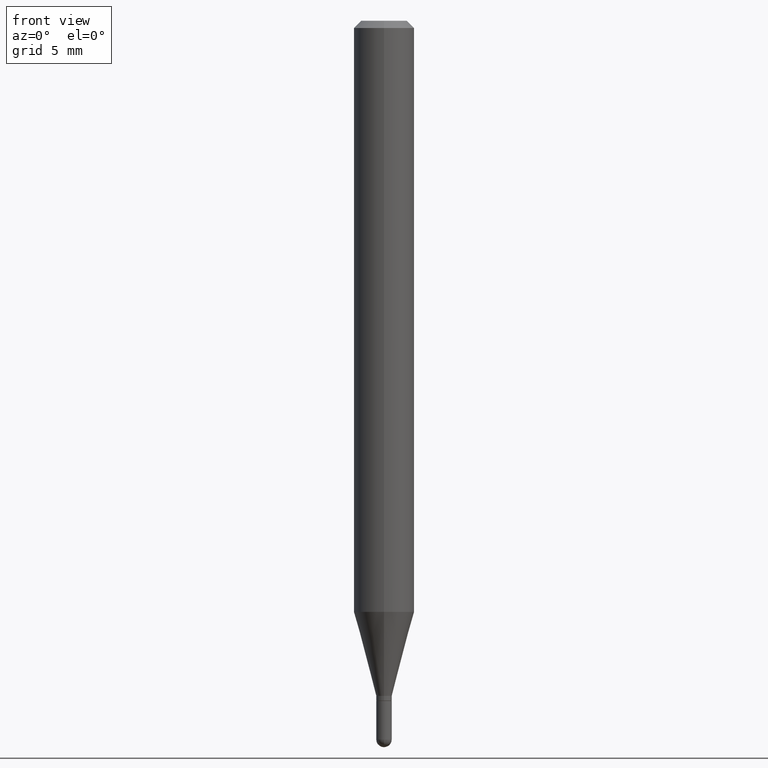
[diagram: clean part render]
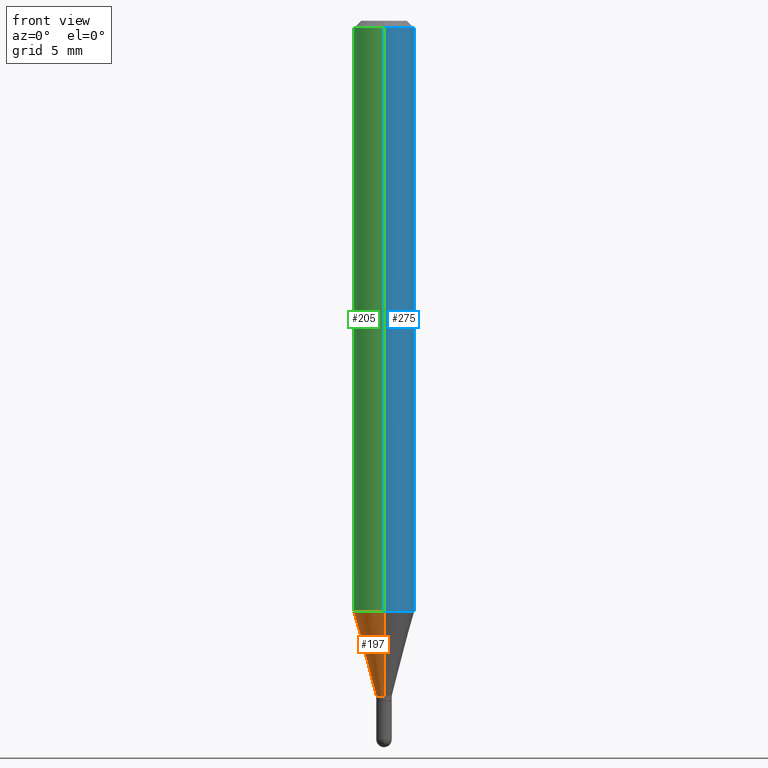
[diagram: same view with three faces highlighted in distinct colors, each labeled with its STEP entity id]
A machine part, front view with three faces highlighted in distinct colors.
Their STEP definitions:

[orange] entity #197 — the highlighted conical surface has half-angle 15 deg.
#9 = DIRECTION ( 'NONE',  ( -2.445462374393167961E-29, 3.491490549535319671E-15, 1.000000000000000000 ) ) ;
#16 = CARTESIAN_POINT ( 'NONE',  ( 2.984588122844728288E-29, -4.261223290239161768E-15, -1.220459637448047863 ) ) ;
#26 = ORIENTED_EDGE ( 'NONE', *, *, #161, .T. ) ;
#27 = DIRECTION ( 'NONE',  ( -6.982962677686265922E-15, -1.000000000000000000, 0.000000000000000000 ) ) ;
#33 = EDGE_CURVE ( 'NONE', #340, #119, #260, .T. ) ;
#43 = CARTESIAN_POINT ( 'NONE',  ( -4.364351673553618406E-16, -0.06250000000000426048, -1.220459637448047641 ) ) ;
#52 = DIRECTION ( 'NONE',  ( -6.982962677686265922E-15, -1.000000000000000000, 0.000000000000000000 ) ) ;
#83 = DIRECTION ( 'NONE',  ( -2.445462374393167961E-29, 3.491490549535319671E-15, 1.000000000000000000 ) ) ;
#99 = CARTESIAN_POINT ( 'NONE',  ( -1.117274028429456354E-16, -0.01600000000000479164, -1.394000000000000128 ) ) ;
#116 = CARTESIAN_POINT ( 'NONE',  ( -1.117274028429456354E-16, -0.01600000000000479164, -1.394000000000000128 ) ) ;
#119 = VERTEX_POINT ( 'NONE', #357 ) ;
#123 = AXIS2_PLACEMENT_3D ( 'NONE', #293, #9, #52 ) ;
#144 = EDGE_CURVE ( 'NONE', #340, #363, #278, .T. ) ;
#151 = ORIENTED_EDGE ( 'NONE', *, *, #33, .F. ) ;
#161 = EDGE_CURVE ( 'NONE', #363, #311, #465, .T. ) ;
#197 = ADVANCED_FACE ( 'NONE', ( #407 ), #350, .T. ) ;
#234 = DIRECTION ( 'NONE',  ( -1.807323732225330928E-15, -0.2588190451025182970, 0.9659258262890689783 ) ) ;
#239 = AXIS2_PLACEMENT_3D ( 'NONE', #16, #83, #270 ) ;
#260 = LINE ( 'NONE', #451, #413 ) ;
#270 = DIRECTION ( 'NONE',  ( -6.982962677686265922E-15, -1.000000000000000000, 4.370956789862821150E-15 ) ) ;
#278 = CIRCLE ( 'NONE', #490, 0.01599999999999992401 ) ;
#293 = CARTESIAN_POINT ( 'NONE',  ( 3.408974549904076448E-29, -4.867137826052236355E-15, -1.394000000000000128 ) ) ;
#298 = EDGE_CURVE ( 'NONE', #119, #311, #403, .T. ) ;
#309 = DIRECTION ( 'NONE',  ( -2.445462374393167961E-29, 3.491490549535319671E-15, 1.000000000000000000 ) ) ;
#311 = VERTEX_POINT ( 'NONE', #43 ) ;
#316 = VECTOR ( 'NONE', #234, 39.37007874015748143 ) ;
#340 = VERTEX_POINT ( 'NONE', #438 ) ;
#350 = CONICAL_SURFACE ( 'NONE', #123, 0.01599999999999992401, 0.2617993877991502960 ) ;
#357 = CARTESIAN_POINT ( 'NONE',  ( 4.440892098500920998E-16, 0.06249999999999571176, -1.220459637448048085 ) ) ;
#361 = ORIENTED_EDGE ( 'NONE', *, *, #144, .T. ) ;
#363 = VERTEX_POINT ( 'NONE', #99 ) ;
#388 = CARTESIAN_POINT ( 'NONE',  ( 3.408974549904076448E-29, -4.867137826052236355E-15, -1.394000000000000128 ) ) ;
#403 = CIRCLE ( 'NONE', #239, 0.06250000000000000000 ) ;
#407 = FACE_OUTER_BOUND ( 'NONE', #509, .T. ) ;
#413 = VECTOR ( 'NONE', #488, 39.37007874015748143 ) ;
#432 = ORIENTED_EDGE ( 'NONE', *, *, #298, .F. ) ;
#438 = CARTESIAN_POINT ( 'NONE',  ( 2.788880237858710265E-16, 0.01599999999999505637, -1.394000000000000128 ) ) ;
#451 = CARTESIAN_POINT ( 'NONE',  ( 1.136868377216495587E-16, 0.01599999999999505637, -1.394000000000000128 ) ) ;
#465 = LINE ( 'NONE', #116, #316 ) ;
#488 = DIRECTION ( 'NONE',  ( 1.839019923739601104E-15, 0.2588190451025250693, 0.9659258262890670910 ) ) ;
#490 = AXIS2_PLACEMENT_3D ( 'NONE', #388, #309, #27 ) ;
#509 = EDGE_LOOP ( 'NONE', ( #151, #361, #26, #432 ) ) ;

[blue] entity #275 — the highlighted cylindrical surface (edge-blend (fillet) strip) has radius 1.5875 mm, axis along (-0, 0, 1).
#31 = CARTESIAN_POINT ( 'NONE',  ( 0.000000000000000000, 0.000000000000000000, 0.000000000000000000 ) ) ;
#39 = ORIENTED_EDGE ( 'NONE', *, *, #236, .F. ) ;
#41 = DIRECTION ( 'NONE',  ( -6.982962677686265922E-15, -1.000000000000000000, 3.483106191921935554E-15 ) ) ;
#43 = CARTESIAN_POINT ( 'NONE',  ( -4.364351673553618406E-16, -0.06250000000000426048, -1.220459637448047641 ) ) ;
#44 = DIRECTION ( 'NONE',  ( -2.445462374393167961E-29, 3.491490549535319671E-15, 1.000000000000000000 ) ) ;
#51 = EDGE_CURVE ( 'NONE', #119, #328, #102, .T. ) ;
#58 = CIRCLE ( 'NONE', #188, 0.06250000000000000000 ) ;
#76 = VECTOR ( 'NONE', #204, 39.37007874015748143 ) ;
#82 = DIRECTION ( 'NONE',  ( -6.982962677686265922E-15, -1.000000000000000000, 3.491490549535319671E-15 ) ) ;
#88 = DIRECTION ( 'NONE',  ( -2.445462374393167961E-29, 3.491490549535319671E-15, 1.000000000000000000 ) ) ;
#102 = LINE ( 'NONE', #412, #277 ) ;
#119 = VERTEX_POINT ( 'NONE', #357 ) ;
#124 = CIRCLE ( 'NONE', #306, 0.06250000000000000000 ) ;
#142 = CARTESIAN_POINT ( 'NONE',  ( -4.364351673553912750E-16, -0.06250000000000005551, -0.01499999999999979128 ) ) ;
#160 = ORIENTED_EDGE ( 'NONE', *, *, #353, .F. ) ;
#186 = EDGE_CURVE ( 'NONE', #311, #119, #124, .T. ) ;
#188 = AXIS2_PLACEMENT_3D ( 'NONE', #507, #88, #41 ) ;
#199 = ORIENTED_EDGE ( 'NONE', *, *, #51, .T. ) ;
#202 = CARTESIAN_POINT ( 'NONE',  ( 2.984588122844728288E-29, -4.261223290239161768E-15, -1.220459637448047863 ) ) ;
#204 = DIRECTION ( 'NONE',  ( -2.445462374393167961E-29, 3.491490549535319671E-15, 1.000000000000000000 ) ) ;
#231 = DIRECTION ( 'NONE',  ( -2.445462374393167961E-29, 3.491490549535319671E-15, 1.000000000000000000 ) ) ;
#235 = ORIENTED_EDGE ( 'NONE', *, *, #186, .T. ) ;
#236 = EDGE_CURVE ( 'NONE', #479, #328, #58, .T. ) ;
#275 = ADVANCED_FACE ( 'NONE', ( #339 ), #310, .T. ) ;
#277 = VECTOR ( 'NONE', #375, 39.37007874015748143 ) ;
#279 = CARTESIAN_POINT ( 'NONE',  ( -4.364351673553916201E-16, -0.06250000000000000000, 2.182181593459574794E-16 ) ) ;
#306 = AXIS2_PLACEMENT_3D ( 'NONE', #202, #44, #329 ) ;
#310 = CYLINDRICAL_SURFACE ( 'NONE', #461, 0.06250000000000000000 ) ;
#311 = VERTEX_POINT ( 'NONE', #43 ) ;
#322 = EDGE_LOOP ( 'NONE', ( #235, #199, #39, #160 ) ) ;
#328 = VERTEX_POINT ( 'NONE', #480 ) ;
#329 = DIRECTION ( 'NONE',  ( -6.982962677686265922E-15, -1.000000000000000000, 4.370956789862821150E-15 ) ) ;
#339 = FACE_OUTER_BOUND ( 'NONE', #322, .T. ) ;
#353 = EDGE_CURVE ( 'NONE', #311, #479, #405, .T. ) ;
#357 = CARTESIAN_POINT ( 'NONE',  ( 4.440892098500920998E-16, 0.06249999999999571176, -1.220459637448048085 ) ) ;
#375 = DIRECTION ( 'NONE',  ( -2.445462374393167961E-29, 3.491490549535319671E-15, 1.000000000000000000 ) ) ;
#405 = LINE ( 'NONE', #279, #76 ) ;
#412 = CARTESIAN_POINT ( 'NONE',  ( 4.440892098500625669E-16, 0.06250000000000000000, -2.182181593459574794E-16 ) ) ;
#461 = AXIS2_PLACEMENT_3D ( 'NONE', #31, #231, #82 ) ;
#479 = VERTEX_POINT ( 'NONE', #142 ) ;
#480 = CARTESIAN_POINT ( 'NONE',  ( 4.440892098500924943E-16, 0.06249999999999993755, -0.01500000000000022669 ) ) ;
#507 = CARTESIAN_POINT ( 'NONE',  ( 3.668193561589754009E-31, -5.237235824302982637E-17, -0.01500000000000000812 ) ) ;

[green] entity #205 — the highlighted cylindrical surface (edge-blend (fillet) strip) has radius 1.5875 mm, axis along (-0, 0, 1).
#1 = ORIENTED_EDGE ( 'NONE', *, *, #51, .F. ) ;
#5 = DIRECTION ( 'NONE',  ( -2.445462374393167961E-29, 3.491490549535319671E-15, 1.000000000000000000 ) ) ;
#16 = CARTESIAN_POINT ( 'NONE',  ( 2.984588122844728288E-29, -4.261223290239161768E-15, -1.220459637448047863 ) ) ;
#43 = CARTESIAN_POINT ( 'NONE',  ( -4.364351673553618406E-16, -0.06250000000000426048, -1.220459637448047641 ) ) ;
#51 = EDGE_CURVE ( 'NONE', #119, #328, #102, .T. ) ;
#54 = CARTESIAN_POINT ( 'NONE',  ( 0.000000000000000000, 0.000000000000000000, 0.000000000000000000 ) ) ;
#56 = AXIS2_PLACEMENT_3D ( 'NONE', #383, #109, #341 ) ;
#76 = VECTOR ( 'NONE', #204, 39.37007874015748143 ) ;
#83 = DIRECTION ( 'NONE',  ( -2.445462374393167961E-29, 3.491490549535319671E-15, 1.000000000000000000 ) ) ;
#93 = EDGE_CURVE ( 'NONE', #328, #479, #276, .T. ) ;
#94 = AXIS2_PLACEMENT_3D ( 'NONE', #54, #5, #474 ) ;
#102 = LINE ( 'NONE', #412, #277 ) ;
#109 = DIRECTION ( 'NONE',  ( -2.445462374393167961E-29, 3.491490549535319671E-15, 1.000000000000000000 ) ) ;
#119 = VERTEX_POINT ( 'NONE', #357 ) ;
#142 = CARTESIAN_POINT ( 'NONE',  ( -4.364351673553912750E-16, -0.06250000000000005551, -0.01499999999999979128 ) ) ;
#193 = ORIENTED_EDGE ( 'NONE', *, *, #353, .T. ) ;
#204 = DIRECTION ( 'NONE',  ( -2.445462374393167961E-29, 3.491490549535319671E-15, 1.000000000000000000 ) ) ;
#205 = ADVANCED_FACE ( 'NONE', ( #212 ), #449, .T. ) ;
#212 = FACE_OUTER_BOUND ( 'NONE', #318, .T. ) ;
#239 = AXIS2_PLACEMENT_3D ( 'NONE', #16, #83, #270 ) ;
#270 = DIRECTION ( 'NONE',  ( -6.982962677686265922E-15, -1.000000000000000000, 4.370956789862821150E-15 ) ) ;
#276 = CIRCLE ( 'NONE', #56, 0.06250000000000000000 ) ;
#277 = VECTOR ( 'NONE', #375, 39.37007874015748143 ) ;
#279 = CARTESIAN_POINT ( 'NONE',  ( -4.364351673553916201E-16, -0.06250000000000000000, 2.182181593459574794E-16 ) ) ;
#298 = EDGE_CURVE ( 'NONE', #119, #311, #403, .T. ) ;
#305 = ORIENTED_EDGE ( 'NONE', *, *, #93, .F. ) ;
#311 = VERTEX_POINT ( 'NONE', #43 ) ;
#318 = EDGE_LOOP ( 'NONE', ( #1, #500, #193, #305 ) ) ;
#328 = VERTEX_POINT ( 'NONE', #480 ) ;
#341 = DIRECTION ( 'NONE',  ( -6.982962677686265922E-15, -1.000000000000000000, 3.483106191921935554E-15 ) ) ;
#353 = EDGE_CURVE ( 'NONE', #311, #479, #405, .T. ) ;
#357 = CARTESIAN_POINT ( 'NONE',  ( 4.440892098500920998E-16, 0.06249999999999571176, -1.220459637448048085 ) ) ;
#375 = DIRECTION ( 'NONE',  ( -2.445462374393167961E-29, 3.491490549535319671E-15, 1.000000000000000000 ) ) ;
#383 = CARTESIAN_POINT ( 'NONE',  ( 3.668193561589754009E-31, -5.237235824302982637E-17, -0.01500000000000000812 ) ) ;
#403 = CIRCLE ( 'NONE', #239, 0.06250000000000000000 ) ;
#405 = LINE ( 'NONE', #279, #76 ) ;
#412 = CARTESIAN_POINT ( 'NONE',  ( 4.440892098500625669E-16, 0.06250000000000000000, -2.182181593459574794E-16 ) ) ;
#449 = CYLINDRICAL_SURFACE ( 'NONE', #94, 0.06250000000000000000 ) ;
#474 = DIRECTION ( 'NONE',  ( -6.982962677686265922E-15, -1.000000000000000000, 3.491490549535319671E-15 ) ) ;
#479 = VERTEX_POINT ( 'NONE', #142 ) ;
#480 = CARTESIAN_POINT ( 'NONE',  ( 4.440892098500924943E-16, 0.06249999999999993755, -0.01500000000000022669 ) ) ;
#500 = ORIENTED_EDGE ( 'NONE', *, *, #298, .T. ) ;